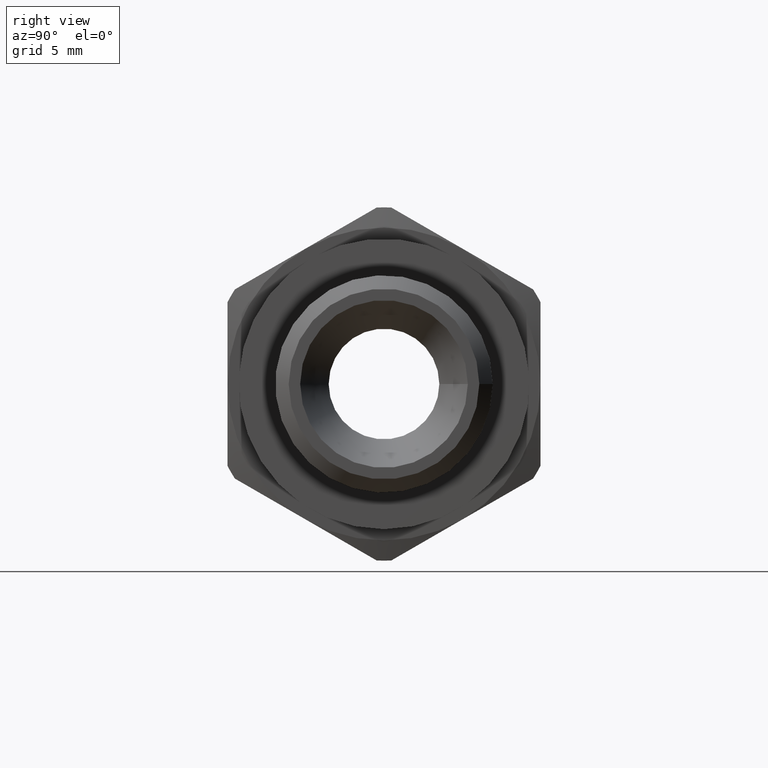
[diagram: clean part render]
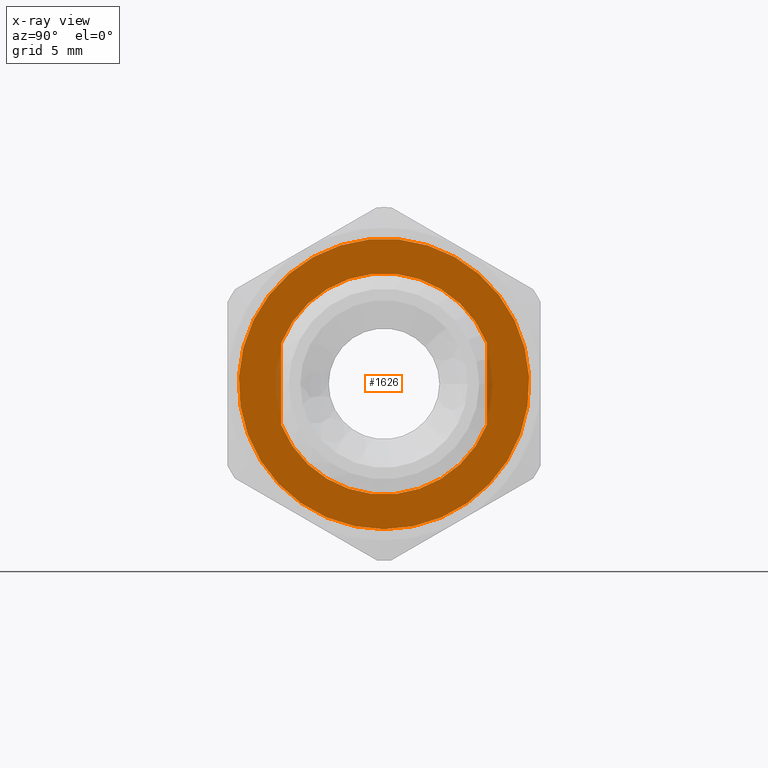
[diagram: x-ray — body ghosted, one internal face saturated and labeled with its STEP entity id]
A machine part, right view, then the same camera in x-ray: the body is ghosted and one INTERNAL B-rep face — a face not visible from any outside direction — is saturated and labeled: STEP entity #1626.
In plain terms, the highlighted planar face has unit normal (-1, 0, 0).
Its self-contained STEP definition (entity closure, byte-faithful):
#1457=CARTESIAN_POINT('',(1.828250529878225,4.600000000000000,0.0));
#1458=VERTEX_POINT('',#1457);
#1465=CARTESIAN_POINT('',(1.828250529878225,-4.600000000000000,0.0));
#1466=VERTEX_POINT('',#1465);
#1467=CARTESIAN_POINT('',(0.0,0.0,0.0));
#1468=DIRECTION('',(0.0,0.0,1.000000000000000));
#1469=DIRECTION('',(-0.369343541389540,0.929292929292929,0.0));
#1470=AXIS2_PLACEMENT_3D('',#1467,#1468,#1469);
#1471=CIRCLE('',#1470,4.949999999999999);
#1472=EDGE_CURVE('',#1466,#1458,#1471,.T.);
#1497=CARTESIAN_POINT('',(-1.828250529878225,-4.600000000000000,0.0));
#1498=VERTEX_POINT('',#1497);
#1499=CARTESIAN_POINT('',(-1.828250529878224,-4.600000000000000,0.0));
#1500=DIRECTION('',(1.0,0.0,0.0));
#1501=VECTOR('',#1500,3.656501059756449);
#1502=LINE('',#1499,#1501);
#1503=EDGE_CURVE('',#1498,#1466,#1502,.T.);
#1529=CARTESIAN_POINT('',(-1.828250529878225,4.600000000000000,0.0));
#1530=VERTEX_POINT('',#1529);
#1531=CARTESIAN_POINT('',(0.0,0.0,0.0));
#1532=DIRECTION('',(0.0,0.0,1.0));
#1533=DIRECTION('',(0.369343541389540,-0.929292929292929,0.0));
#1534=AXIS2_PLACEMENT_3D('',#1531,#1532,#1533);
#1535=CIRCLE('',#1534,4.950000000000000);
#1536=EDGE_CURVE('',#1530,#1498,#1535,.T.);
#1559=CARTESIAN_POINT('',(1.828250529878225,4.600000000000000,0.0));
#1560=DIRECTION('',(-1.0,0.0,0.0));
#1561=VECTOR('',#1560,3.656501059756450);
#1562=LINE('',#1559,#1561);
#1563=EDGE_CURVE('',#1458,#1530,#1562,.T.);
#1585=CARTESIAN_POINT('',(6.500000000000000,7.960204E-016,0.0));
#1586=VERTEX_POINT('',#1585);
#1587=CARTESIAN_POINT('',(0.0,0.0,0.0));
#1588=DIRECTION('',(0.0,0.0,-1.0));
#1589=DIRECTION('',(-1.0,0.0,0.0));
#1590=AXIS2_PLACEMENT_3D('',#1587,#1588,#1589);
#1591=CIRCLE('',#1590,6.500000000000000);
#1592=EDGE_CURVE('',#1586,#1586,#1591,.T.);
#1612=CARTESIAN_POINT('',(0.0,0.0,0.0));
#1613=DIRECTION('',(0.0,0.0,-1.0));
#1614=DIRECTION('',(-1.0,0.0,0.0));
#1615=AXIS2_PLACEMENT_3D('',#1612,#1613,#1614);
#1616=PLANE('',#1615);
#1617=ORIENTED_EDGE('',*,*,#1592,.T.);
#1618=EDGE_LOOP('',(#1617));
#1619=FACE_OUTER_BOUND('',#1618,.T.);
#1620=ORIENTED_EDGE('',*,*,#1472,.T.);
#1621=ORIENTED_EDGE('',*,*,#1563,.T.);
#1622=ORIENTED_EDGE('',*,*,#1536,.T.);
#1623=ORIENTED_EDGE('',*,*,#1503,.T.);
#1624=EDGE_LOOP('',(#1620,#1621,#1622,#1623));
#1625=FACE_BOUND('',#1624,.T.);
#1626=ADVANCED_FACE('',(#1619,#1625),#1616,.T.);